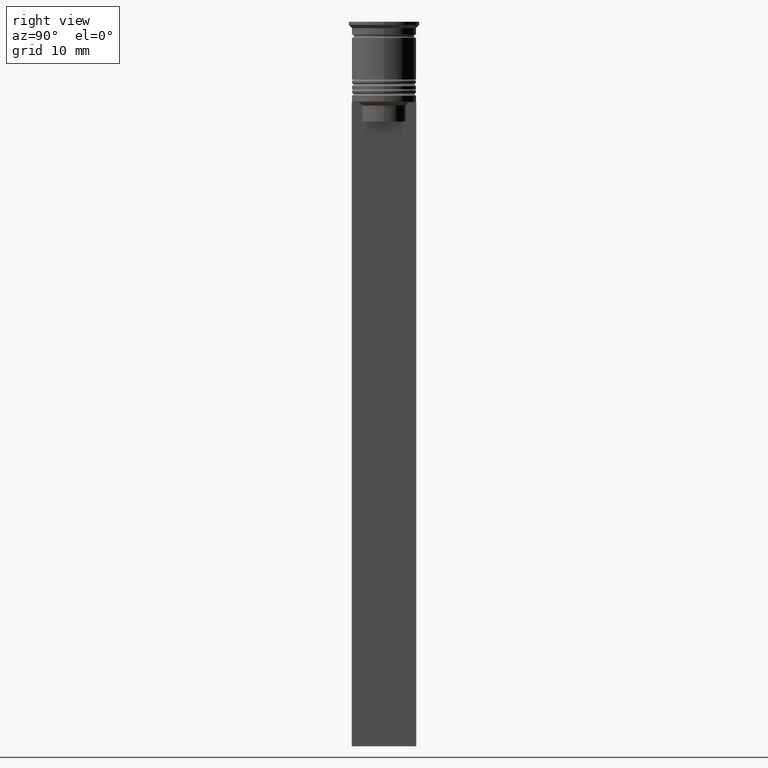
[diagram: clean part render]
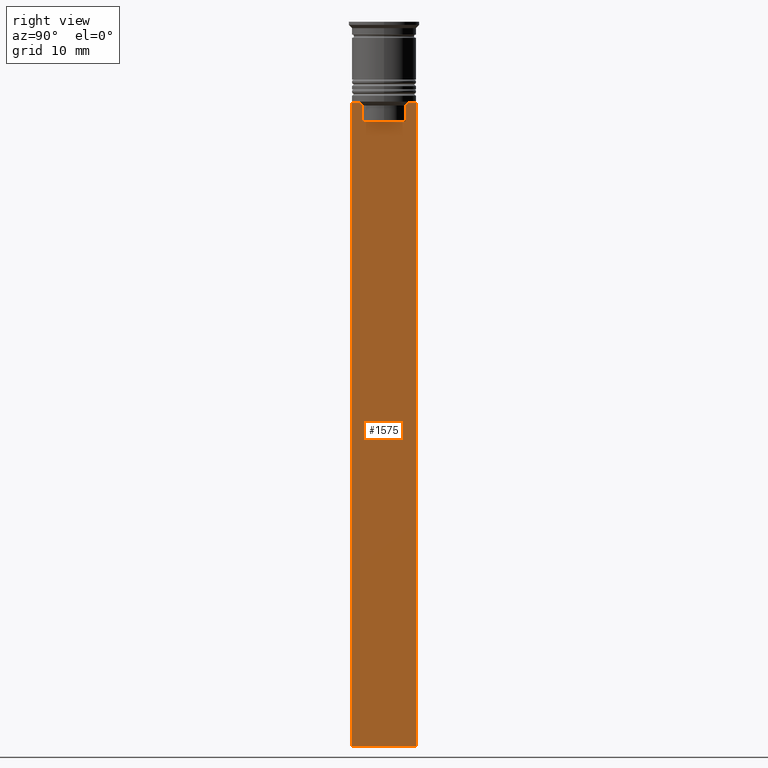
[diagram: same view with one face highlighted and labeled with its STEP entity id]
A machine part, right view. The second image highlights one B-rep face of the part: STEP entity #1575.
In plain terms, the highlighted planar face has unit normal (-1, 0, 0).
Its self-contained STEP definition (entity closure, byte-faithful):
#7 = EDGE_LOOP ( 'NONE', ( #2101, #2300, #784, #238, #298, #363, #1568, #1827, #206, #1552, #1138, #1654 ) ) ;
#41 = CARTESIAN_POINT ( 'NONE',  ( 0.5000000000000000000, 3.699657965831574913, -12.66677026074361301 ) ) ;
#93 = CARTESIAN_POINT ( 'NONE',  ( 0.5000000000000000000, 4.874423042781575788, -12.50000000000000000 ) ) ;
#114 = CARTESIAN_POINT ( 'NONE',  ( 0.5000000000000000000, -3.363034344160045208, 0.000000000000000000 ) ) ;
#125 = DIRECTION ( 'NONE',  ( -1.000000000000000000, 0.000000000000000000, 0.000000000000000000 ) ) ;
#147 = LINE ( 'NONE', #2366, #2464 ) ;
#163 = B_SPLINE_CURVE_WITH_KNOTS ( 'NONE', 3,
 ( #638, #41, #1018, #1043 ),
 .UNSPECIFIED., .F., .F.,
 ( 4, 4 ),
 ( 0.006644825462451552783, 0.007355321358912435097 ),
 .UNSPECIFIED. ) ;
#173 = CARTESIAN_POINT ( 'NONE',  ( 0.5000000000000000000, -4.999999999999999112, -12.50000000000000000 ) ) ;
#198 = LINE ( 'NONE', #599, #2521 ) ;
#206 = ORIENTED_EDGE ( 'NONE', *, *, #1904, .T. ) ;
#238 = ORIENTED_EDGE ( 'NONE', *, *, #482, .T. ) ;
#257 = VECTOR ( 'NONE', #2064, 1000.000000000000000 ) ;
#297 = LINE ( 'NONE', #845, #257 ) ;
#298 = ORIENTED_EDGE ( 'NONE', *, *, #1672, .T. ) ;
#335 = DIRECTION ( 'NONE',  ( 0.000000000000000000, 1.000000000000000000, 0.000000000000000000 ) ) ;
#357 = CARTESIAN_POINT ( 'NONE',  ( 0.5000000000000000000, -4.999999999999999112, -12.50000000000000000 ) ) ;
#363 = ORIENTED_EDGE ( 'NONE', *, *, #2320, .T. ) ;
#430 = B_SPLINE_CURVE_WITH_KNOTS ( 'NONE', 3,
 ( #1667, #702, #1095, #1253 ),
 .UNSPECIFIED., .F., .F.,
 ( 4, 4 ),
 ( 0.01632394437298965648, 0.01703543518243618576 ),
 .UNSPECIFIED. ) ;
#482 = EDGE_CURVE ( 'NONE', #1090, #2187, #1543, .T. ) ;
#570 = CARTESIAN_POINT ( 'NONE',  ( 0.5000000000000000000, 3.399999999999998135, -15.50000000000000000 ) ) ;
#599 = CARTESIAN_POINT ( 'NONE',  ( 0.5000000000000000000, -4.999999999999999112, -12.50000000000000000 ) ) ;
#617 = DIRECTION ( 'NONE',  ( 0.000000000000000000, -1.000000000000000000, 0.000000000000000000 ) ) ;
#638 = CARTESIAN_POINT ( 'NONE',  ( 0.5000000000000000000, 3.867815921162742754, -12.50000000000000000 ) ) ;
#702 = CARTESIAN_POINT ( 'NONE',  ( 0.5000000000000000000, -3.531412985305424801, -12.83345201382502765 ) ) ;
#711 = DIRECTION ( 'NONE',  ( 0.000000000000000000, 0.000000000000000000, 1.000000000000000000 ) ) ;
#724 = LINE ( 'NONE', #114, #2482 ) ;
#729 = EDGE_CURVE ( 'NONE', #1702, #2360, #297, .T. ) ;
#753 = VECTOR ( 'NONE', #2363, 1000.000000000000000 ) ;
#754 = CARTESIAN_POINT ( 'NONE',  ( 0.5000000000000000000, 3.363034344160045208, 0.000000000000000000 ) ) ;
#784 = ORIENTED_EDGE ( 'NONE', *, *, #1724, .T. ) ;
#832 = VECTOR ( 'NONE', #1470, 1000.000000000000000 ) ;
#845 = CARTESIAN_POINT ( 'NONE',  ( 0.5000000000000000000, 5.000000000000000888, -2.450124378879110054 ) ) ;
#859 = CARTESIAN_POINT ( 'NONE',  ( 0.5000000000000000000, -4.999999999999999112, -2.450124378879110054 ) ) ;
#896 = VECTOR ( 'NONE', #1340, 1000.000000000000000 ) ;
#931 = CARTESIAN_POINT ( 'NONE',  ( 0.5000000000000000000, -4.999999999999999112, -12.50000000000000000 ) ) ;
#1018 = CARTESIAN_POINT ( 'NONE',  ( 0.5000000000000000000, 3.531412678228260216, -12.83345231756357840 ) ) ;
#1039 = FACE_OUTER_BOUND ( 'NONE', #7, .T. ) ;
#1043 = CARTESIAN_POINT ( 'NONE',  ( 0.5000000000000000000, 3.363034344160045208, -13.00000000000000178 ) ) ;
#1050 = CARTESIAN_POINT ( 'NONE',  ( 0.5000000000000000000, 3.867815921162742754, -12.50000000000000000 ) ) ;
#1090 = VERTEX_POINT ( 'NONE', #1093 ) ;
#1093 = CARTESIAN_POINT ( 'NONE',  ( 0.5000000000000000000, 3.363034344160045652, -15.50000000000000000 ) ) ;
#1095 = CARTESIAN_POINT ( 'NONE',  ( 0.5000000000000000000, -3.699658232838647365, -12.66676999593996555 ) ) ;
#1102 = CARTESIAN_POINT ( 'NONE',  ( 0.5000000000000000000, -4.999999999999999112, -112.5000000000000000 ) ) ;
#1118 = VERTEX_POINT ( 'NONE', #93 ) ;
#1138 = ORIENTED_EDGE ( 'NONE', *, *, #729, .F. ) ;
#1253 = CARTESIAN_POINT ( 'NONE',  ( 0.5000000000000000000, -3.867815921162742754, -12.50000000000000000 ) ) ;
#1317 = VECTOR ( 'NONE', #2538, 1000.000000000000000 ) ;
#1339 = LINE ( 'NONE', #754, #753 ) ;
#1340 = DIRECTION ( 'NONE',  ( 0.000000000000000000, -1.000000000000000000, 0.000000000000000000 ) ) ;
#1356 = CARTESIAN_POINT ( 'NONE',  ( 0.5000000000000000000, 3.363034344160045208, -13.00000000000000178 ) ) ;
#1384 = CARTESIAN_POINT ( 'NONE',  ( 0.5000000000000000000, -3.363034344160045652, -15.50000000000000000 ) ) ;
#1410 = VECTOR ( 'NONE', #2172, 1000.000000000000000 ) ;
#1470 = DIRECTION ( 'NONE',  ( 0.000000000000000000, 0.000000000000000000, -1.000000000000000000 ) ) ;
#1523 = LINE ( 'NONE', #357, #1317 ) ;
#1543 = LINE ( 'NONE', #570, #1410 ) ;
#1552 = ORIENTED_EDGE ( 'NONE', *, *, #2439, .T. ) ;
#1568 = ORIENTED_EDGE ( 'NONE', *, *, #2489, .T. ) ;
#1575 = ADVANCED_FACE ( 'NONE', ( #1039 ), #1842, .F. ) ;
#1654 = ORIENTED_EDGE ( 'NONE', *, *, #2523, .T. ) ;
#1667 = CARTESIAN_POINT ( 'NONE',  ( 0.5000000000000000000, -3.363034344160045208, -13.00000000000000178 ) ) ;
#1672 = EDGE_CURVE ( 'NONE', #2187, #2324, #724, .T. ) ;
#1702 = VERTEX_POINT ( 'NONE', #1910 ) ;
#1710 = LINE ( 'NONE', #173, #1824 ) ;
#1724 = EDGE_CURVE ( 'NONE', #2075, #1090, #1339, .T. ) ;
#1809 = EDGE_CURVE ( 'NONE', #1118, #2000, #198, .T. ) ;
#1822 = VERTEX_POINT ( 'NONE', #2176 ) ;
#1824 = VECTOR ( 'NONE', #2578, 1000.000000000000000 ) ;
#1827 = ORIENTED_EDGE ( 'NONE', *, *, #2456, .T. ) ;
#1842 = PLANE ( 'NONE',  #2055 ) ;
#1904 = EDGE_CURVE ( 'NONE', #1916, #2120, #2438, .T. ) ;
#1910 = CARTESIAN_POINT ( 'NONE',  ( 0.5000000000000000000, 5.000000000000000888, -12.50000000000000000 ) ) ;
#1916 = VERTEX_POINT ( 'NONE', #2037 ) ;
#1942 = LINE ( 'NONE', #931, #896 ) ;
#2000 = VERTEX_POINT ( 'NONE', #1050 ) ;
#2037 = CARTESIAN_POINT ( 'NONE',  ( 0.5000000000000000000, -4.999999999999999112, -12.50000000000000000 ) ) ;
#2055 = AXIS2_PLACEMENT_3D ( 'NONE', #2251, #125, #711 ) ;
#2064 = DIRECTION ( 'NONE',  ( 0.000000000000000000, 0.000000000000000000, -1.000000000000000000 ) ) ;
#2074 = CARTESIAN_POINT ( 'NONE',  ( 0.5000000000000000000, -4.874423042781575788, -12.50000000000000000 ) ) ;
#2075 = VERTEX_POINT ( 'NONE', #1356 ) ;
#2101 = ORIENTED_EDGE ( 'NONE', *, *, #1809, .T. ) ;
#2120 = VERTEX_POINT ( 'NONE', #1102 ) ;
#2162 = EDGE_CURVE ( 'NONE', #2000, #2075, #163, .T. ) ;
#2172 = DIRECTION ( 'NONE',  ( 0.000000000000000000, -1.000000000000000000, 0.000000000000000000 ) ) ;
#2176 = CARTESIAN_POINT ( 'NONE',  ( 0.5000000000000000000, -3.867815921162742754, -12.50000000000000000 ) ) ;
#2187 = VERTEX_POINT ( 'NONE', #1384 ) ;
#2251 = CARTESIAN_POINT ( 'NONE',  ( 0.5000000000000000000, -4.999999999999999112, -2.450124378879110054 ) ) ;
#2300 = ORIENTED_EDGE ( 'NONE', *, *, #2162, .T. ) ;
#2305 = VERTEX_POINT ( 'NONE', #2074 ) ;
#2320 = EDGE_CURVE ( 'NONE', #2324, #1822, #430, .T. ) ;
#2324 = VERTEX_POINT ( 'NONE', #2459 ) ;
#2332 = DIRECTION ( 'NONE',  ( -0.000000000000000000, -0.000000000000000000, 1.000000000000000000 ) ) ;
#2360 = VERTEX_POINT ( 'NONE', #2473 ) ;
#2363 = DIRECTION ( 'NONE',  ( 0.000000000000000000, 0.000000000000000000, -1.000000000000000000 ) ) ;
#2366 = CARTESIAN_POINT ( 'NONE',  ( 0.5000000000000000000, -4.999999999999999112, -112.5000000000000000 ) ) ;
#2438 = LINE ( 'NONE', #859, #832 ) ;
#2439 = EDGE_CURVE ( 'NONE', #2120, #2360, #147, .T. ) ;
#2456 = EDGE_CURVE ( 'NONE', #2305, #1916, #1523, .T. ) ;
#2459 = CARTESIAN_POINT ( 'NONE',  ( 0.5000000000000000000, -3.363034344160045208, -13.00000000000000178 ) ) ;
#2464 = VECTOR ( 'NONE', #335, 1000.000000000000000 ) ;
#2473 = CARTESIAN_POINT ( 'NONE',  ( 0.5000000000000000000, 5.000000000000000888, -112.5000000000000000 ) ) ;
#2482 = VECTOR ( 'NONE', #2332, 1000.000000000000000 ) ;
#2489 = EDGE_CURVE ( 'NONE', #1822, #2305, #1942, .T. ) ;
#2521 = VECTOR ( 'NONE', #617, 1000.000000000000000 ) ;
#2523 = EDGE_CURVE ( 'NONE', #1702, #1118, #1710, .T. ) ;
#2538 = DIRECTION ( 'NONE',  ( 0.000000000000000000, -1.000000000000000000, 0.000000000000000000 ) ) ;
#2578 = DIRECTION ( 'NONE',  ( 0.000000000000000000, -1.000000000000000000, 0.000000000000000000 ) ) ;